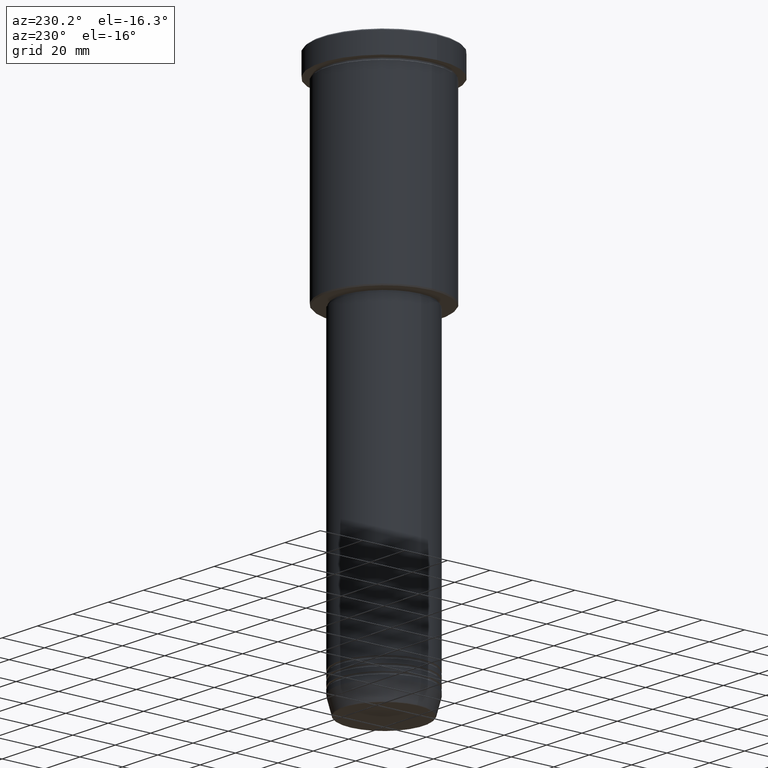
[diagram: clean part render]
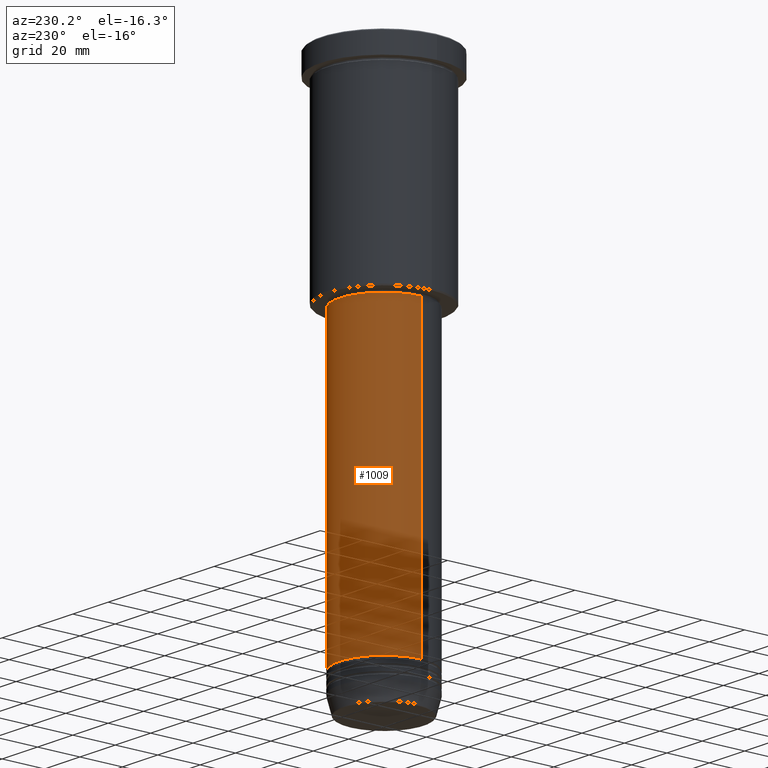
[diagram: same view with one face highlighted and labeled with its STEP entity id]
A machine part, auxiliary view. The second image highlights one B-rep face of the part: STEP entity #1009.
In plain terms, the highlighted cylindrical surface (partial cylindrical patch) has radius 21 mm, axis along (-0, -0, 1).
Its self-contained STEP definition (entity closure, byte-faithful):
#24 = CARTESIAN_POINT ( 'NONE',  ( 21.00000000000000000, 0.000000000000000000, -97.00000000000000000 ) ) ;
#75 = EDGE_CURVE ( 'NONE', #667, #219, #1046, .T. ) ;
#88 = LINE ( 'NONE', #950, #593 ) ;
#114 = ORIENTED_EDGE ( 'NONE', *, *, #1150, .F. ) ;
#131 = DIRECTION ( 'NONE',  ( -0.000000000000000000, -0.000000000000000000, 1.000000000000000000 ) ) ;
#176 = EDGE_CURVE ( 'NONE', #1025, #219, #589, .T. ) ;
#219 = VERTEX_POINT ( 'NONE', #336 ) ;
#241 = VERTEX_POINT ( 'NONE', #987 ) ;
#245 = AXIS2_PLACEMENT_3D ( 'NONE', #995, #541, #914 ) ;
#297 = DIRECTION ( 'NONE',  ( 1.000000000000000000, 0.000000000000000000, 0.000000000000000000 ) ) ;
#308 = ORIENTED_EDGE ( 'NONE', *, *, #938, .T. ) ;
#336 = CARTESIAN_POINT ( 'NONE',  ( -21.00000000000000000, 2.571758278209441661E-15, -97.00000000000000000 ) ) ;
#359 = CYLINDRICAL_SURFACE ( 'NONE', #245, 21.00000000000000000 ) ;
#430 = DIRECTION ( 'NONE',  ( -0.000000000000000000, -0.000000000000000000, 1.000000000000000000 ) ) ;
#437 = ORIENTED_EDGE ( 'NONE', *, *, #75, .F. ) ;
#466 = CARTESIAN_POINT ( 'NONE',  ( -21.00000000000000000, 2.571758278209441661E-15, 0.000000000000000000 ) ) ;
#541 = DIRECTION ( 'NONE',  ( -0.000000000000000000, -0.000000000000000000, 1.000000000000000000 ) ) ;
#554 = VECTOR ( 'NONE', #131, 1000.000000000000000 ) ;
#589 = LINE ( 'NONE', #466, #554 ) ;
#593 = VECTOR ( 'NONE', #1149, 1000.000000000000000 ) ;
#646 = CARTESIAN_POINT ( 'NONE',  ( -21.00000000000000000, 2.571758278209441661E-15, -234.0000000000000000 ) ) ;
#667 = VERTEX_POINT ( 'NONE', #24 ) ;
#708 = CARTESIAN_POINT ( 'NONE',  ( 0.000000000000000000, 0.000000000000000000, -234.0000000000000000 ) ) ;
#746 = ORIENTED_EDGE ( 'NONE', *, *, #176, .T. ) ;
#763 = CARTESIAN_POINT ( 'NONE',  ( 0.000000000000000000, 0.000000000000000000, -97.00000000000000000 ) ) ;
#790 = CIRCLE ( 'NONE', #792, 21.00000000000000000 ) ;
#792 = AXIS2_PLACEMENT_3D ( 'NONE', #708, #430, #984 ) ;
#821 = FACE_OUTER_BOUND ( 'NONE', #1012, .T. ) ;
#914 = DIRECTION ( 'NONE',  ( 1.000000000000000000, 0.000000000000000000, 0.000000000000000000 ) ) ;
#938 = EDGE_CURVE ( 'NONE', #241, #1025, #790, .T. ) ;
#950 = CARTESIAN_POINT ( 'NONE',  ( 21.00000000000000000, 0.000000000000000000, 0.000000000000000000 ) ) ;
#980 = AXIS2_PLACEMENT_3D ( 'NONE', #763, #1118, #297 ) ;
#984 = DIRECTION ( 'NONE',  ( 1.000000000000000000, 0.000000000000000000, 0.000000000000000000 ) ) ;
#987 = CARTESIAN_POINT ( 'NONE',  ( 21.00000000000000000, 0.000000000000000000, -234.0000000000000000 ) ) ;
#995 = CARTESIAN_POINT ( 'NONE',  ( 0.000000000000000000, 0.000000000000000000, 0.000000000000000000 ) ) ;
#1009 = ADVANCED_FACE ( 'NONE', ( #821 ), #359, .T. ) ;
#1012 = EDGE_LOOP ( 'NONE', ( #308, #746, #437, #114 ) ) ;
#1025 = VERTEX_POINT ( 'NONE', #646 ) ;
#1046 = CIRCLE ( 'NONE', #980, 21.00000000000000000 ) ;
#1118 = DIRECTION ( 'NONE',  ( -0.000000000000000000, -0.000000000000000000, 1.000000000000000000 ) ) ;
#1149 = DIRECTION ( 'NONE',  ( -0.000000000000000000, -0.000000000000000000, 1.000000000000000000 ) ) ;
#1150 = EDGE_CURVE ( 'NONE', #241, #667, #88, .T. ) ;